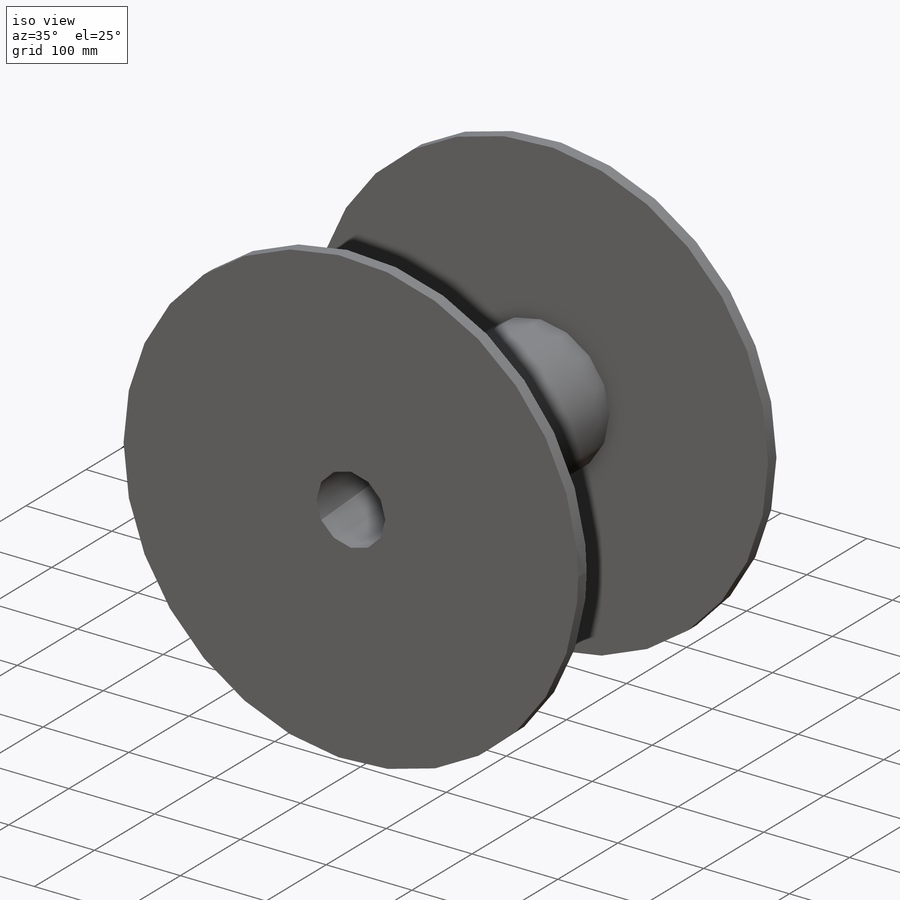
[diagram: iso view]
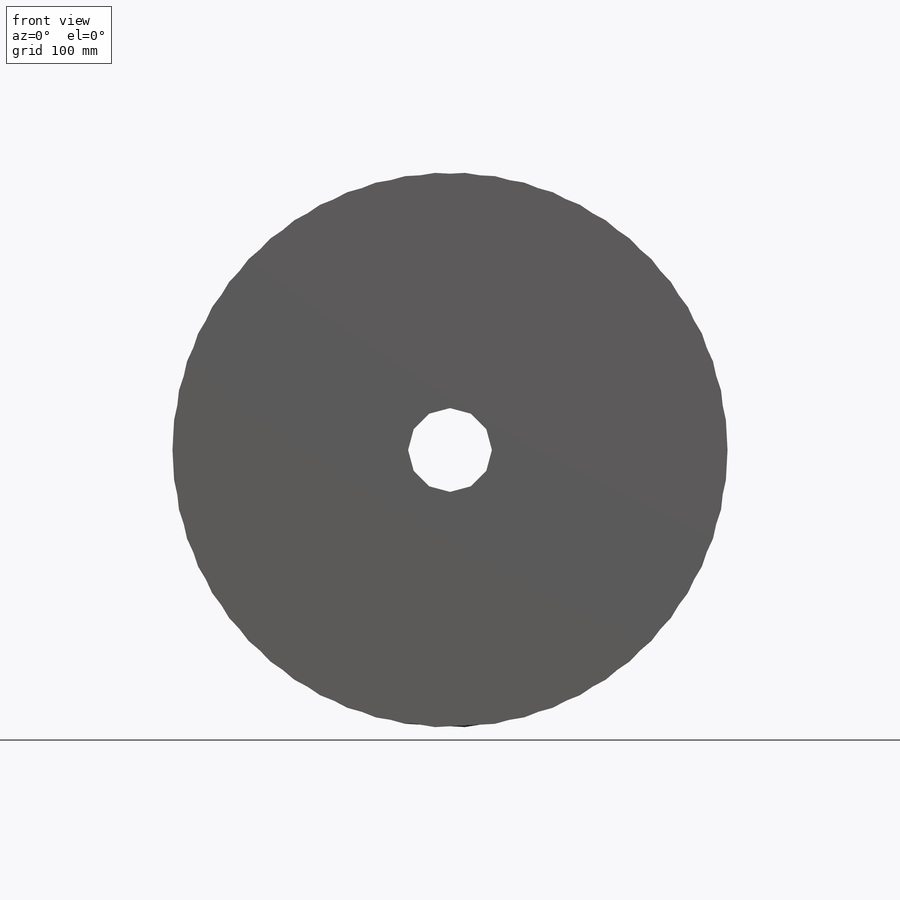
[diagram: front view]
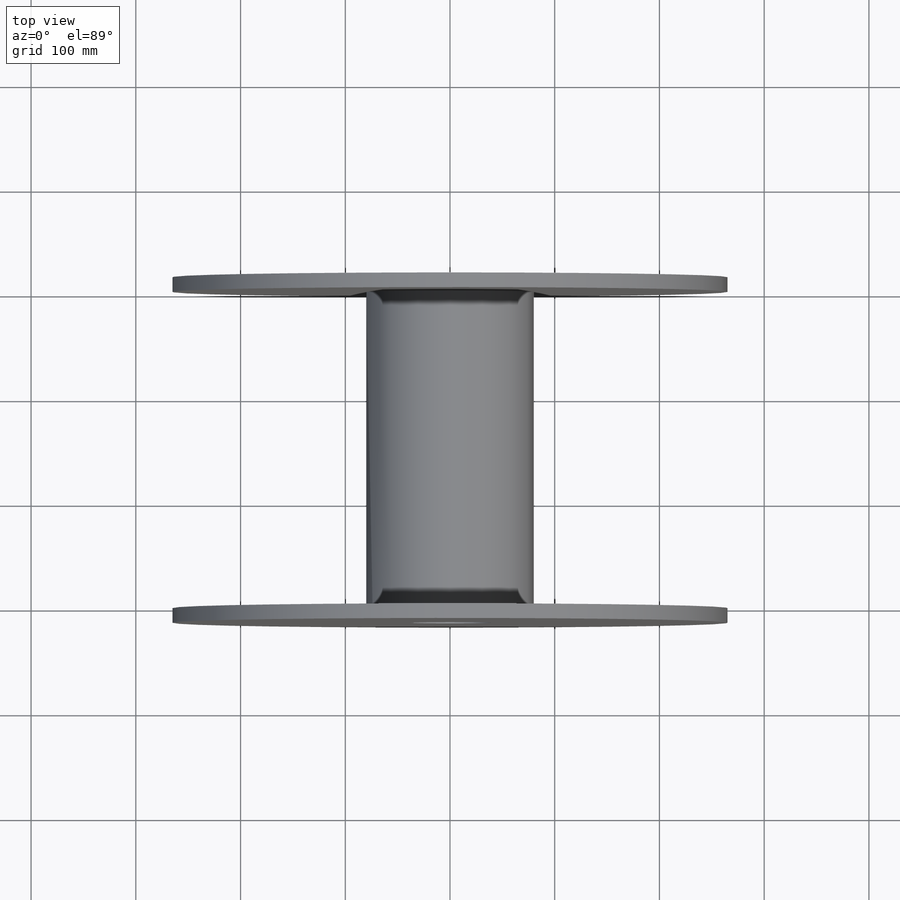
[diagram: top view]
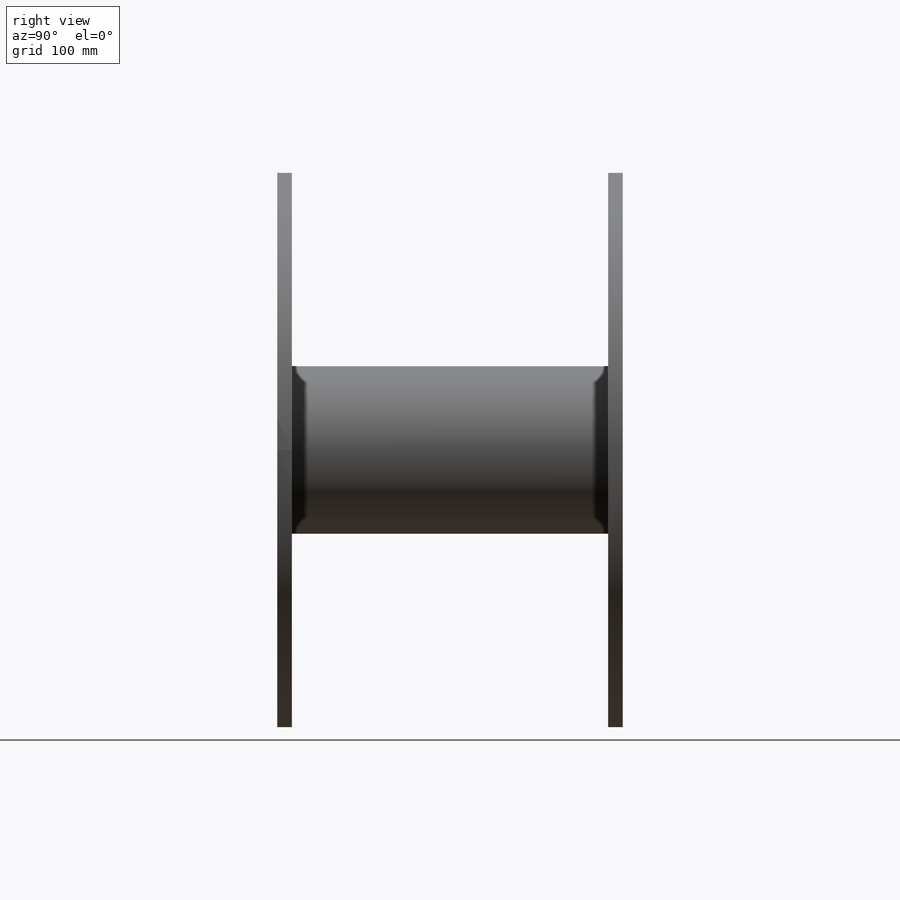
[diagram: right view]
SOLIDWORKS PART (.sldprt)
format: sldprt  version: not decoded by parser v0  size: 203,776 bytes
history: native  units: mm
features: sketch x4, plane x3, extrude x3, material x1, cut_extrude x1 (+8 scaffold rows collapsed)
feature tree (20):
  scaffold x8  (default folders/planes/origin — collapsed)
  material  "Материал <не указан>"
  plane  "Спереди"
  plane  "Сверху"
  plane  "Справа"
  sketch  "Эскиз1"  dims[D1=160.0mm]
  extrude  "Бобышка-Вытянуть1"  Depth=302mm
  sketch  "Эскиз2"  dims[D1=530.0mm]
  extrude  "Бобышка-Вытянуть2"  Depth=14mm
  sketch  "Эскиз3"  dims[D1=530.0mm]
  extrude  "Бобышка-Вытянуть3"  Depth=14mm
  sketch  "Эскиз4"  dims[D1=80.0mm]
  cut_extrude  "Вырез-Вытянуть1"  [1 undecoded]
decode coverage: 7 of 8 modeling features carry decoded parameters
note: 1 parameter value undecoded
note: suppression state not decoded; provenance and decode notes live in map.json
